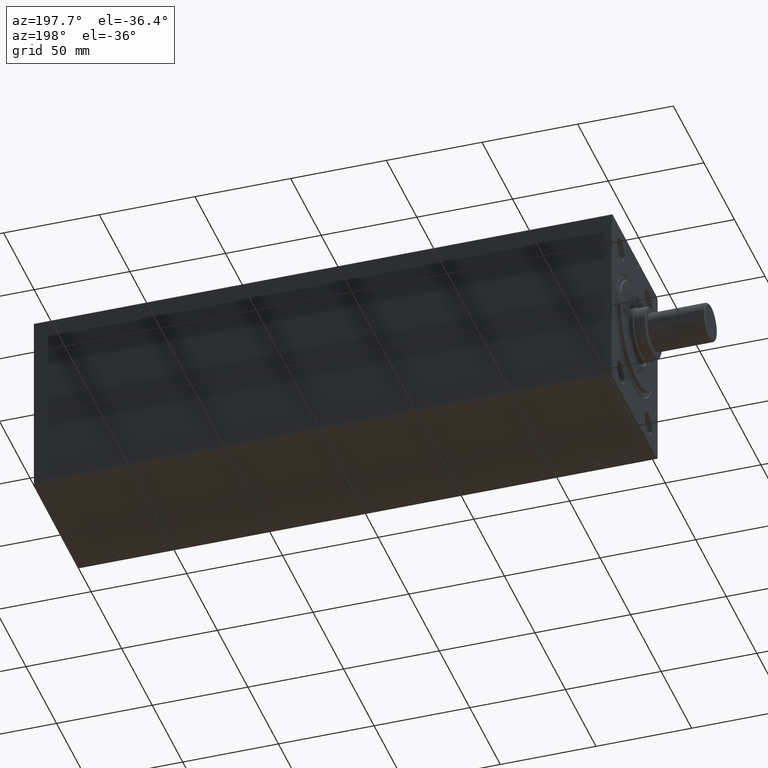
[diagram: clean part render]
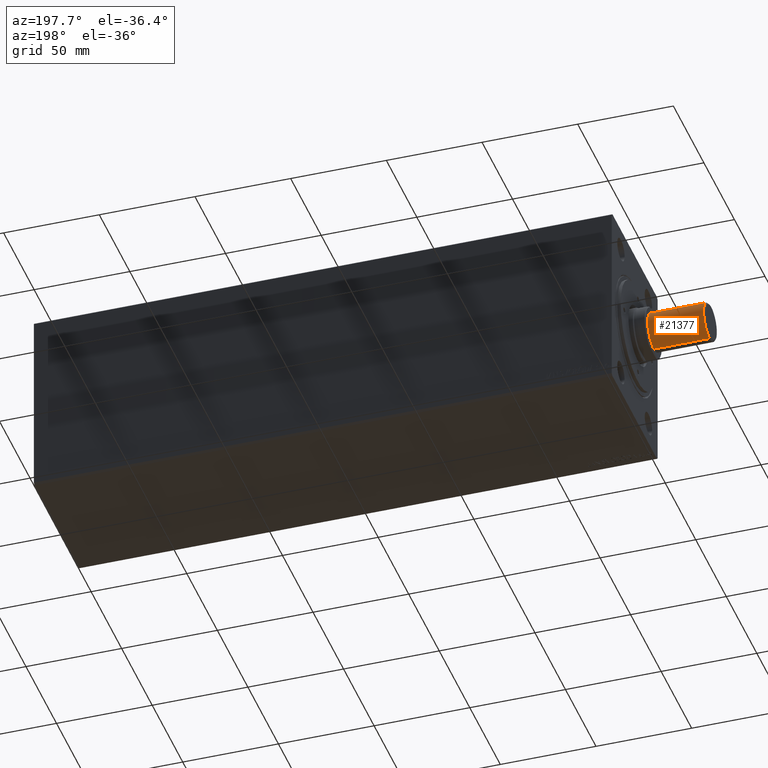
[diagram: same view with one face highlighted and labeled with its STEP entity id]
A machine part, auxiliary view. The second image highlights one B-rep face of the part: STEP entity #21377.
In plain terms, the highlighted cylindrical surface (edge-blend (fillet) strip) has radius 10 mm, axis along (1, -0, -0).
Its self-contained STEP definition (entity closure, byte-faithful):
#426 = CARTESIAN_POINT ( 'NONE',  ( 0.000000000000000000, 0.000000000000000000, -30.00000000000000000 ) ) ;
#433 = CARTESIAN_POINT ( 'NONE',  ( -10.00000000000000000, 1.224646799147353256E-15, -30.00000000000000000 ) ) ;
#4456 = DIRECTION ( 'NONE',  ( 0.000000000000000000, 0.000000000000000000, 1.000000000000000000 ) ) ;
#5156 = VECTOR ( 'NONE', #4456, 1000.000000000000000 ) ;
#5344 = VECTOR ( 'NONE', #8510, 1000.000000000000000 ) ;
#7533 = EDGE_LOOP ( 'NONE', ( #18610, #30645, #13356, #18503 ) ) ;
#7570 = AXIS2_PLACEMENT_3D ( 'NONE', #19269, #29151, #19053 ) ;
#8510 = DIRECTION ( 'NONE',  ( 0.000000000000000000, 0.000000000000000000, 1.000000000000000000 ) ) ;
#8788 = CARTESIAN_POINT ( 'NONE',  ( -10.00000000000000000, 1.224646799147353256E-15, 0.000000000000000000 ) ) ;
#9583 = AXIS2_PLACEMENT_3D ( 'NONE', #426, #22073, #11544 ) ;
#9836 = DIRECTION ( 'NONE',  ( 1.000000000000000000, 0.000000000000000000, 0.000000000000000000 ) ) ;
#10154 = CARTESIAN_POINT ( 'NONE',  ( 10.00000000000000000, 0.000000000000000000, 0.000000000000000000 ) ) ;
#10172 = AXIS2_PLACEMENT_3D ( 'NONE', #44344, #16777, #9836 ) ;
#11544 = DIRECTION ( 'NONE',  ( 1.000000000000000000, 0.000000000000000000, 0.000000000000000000 ) ) ;
#13356 = ORIENTED_EDGE ( 'NONE', *, *, #33012, .F. ) ;
#14463 = CIRCLE ( 'NONE', #10172, 10.00000000000000000 ) ;
#16665 = EDGE_CURVE ( 'NONE', #42389, #40208, #14463, .T. ) ;
#16705 = EDGE_CURVE ( 'NONE', #40208, #43817, #42095, .T. ) ;
#16777 = DIRECTION ( 'NONE',  ( -0.000000000000000000, -0.000000000000000000, 1.000000000000000000 ) ) ;
#18503 = ORIENTED_EDGE ( 'NONE', *, *, #24272, .F. ) ;
#18610 = ORIENTED_EDGE ( 'NONE', *, *, #16665, .T. ) ;
#19053 = DIRECTION ( 'NONE',  ( 1.000000000000000000, 0.000000000000000000, 0.000000000000000000 ) ) ;
#19269 = CARTESIAN_POINT ( 'NONE',  ( 0.000000000000000000, 0.000000000000000000, 0.000000000000000000 ) ) ;
#21377 = ADVANCED_FACE ( 'NONE', ( #27755 ), #27527, .T. ) ;
#22073 = DIRECTION ( 'NONE',  ( 0.000000000000000000, 0.000000000000000000, 1.000000000000000000 ) ) ;
#24272 = EDGE_CURVE ( 'NONE', #42389, #30099, #29362, .T. ) ;
#24436 = CARTESIAN_POINT ( 'NONE',  ( -10.00000000000000000, 1.224646799147353256E-15, -29.19999999999999574 ) ) ;
#27527 = CYLINDRICAL_SURFACE ( 'NONE', #9583, 10.00000000000000000 ) ;
#27755 = FACE_OUTER_BOUND ( 'NONE', #7533, .T. ) ;
#29151 = DIRECTION ( 'NONE',  ( 0.000000000000000000, 0.000000000000000000, 1.000000000000000000 ) ) ;
#29362 = LINE ( 'NONE', #39225, #5344 ) ;
#30099 = VERTEX_POINT ( 'NONE', #10154 ) ;
#30645 = ORIENTED_EDGE ( 'NONE', *, *, #16705, .T. ) ;
#31929 = CIRCLE ( 'NONE', #7570, 10.00000000000000000 ) ;
#33012 = EDGE_CURVE ( 'NONE', #30099, #43817, #31929, .T. ) ;
#35821 = CARTESIAN_POINT ( 'NONE',  ( 10.00000000000000000, 0.000000000000000000, -29.19999999999999574 ) ) ;
#39225 = CARTESIAN_POINT ( 'NONE',  ( 10.00000000000000000, 0.000000000000000000, -30.00000000000000000 ) ) ;
#40208 = VERTEX_POINT ( 'NONE', #24436 ) ;
#42095 = LINE ( 'NONE', #433, #5156 ) ;
#42389 = VERTEX_POINT ( 'NONE', #35821 ) ;
#43817 = VERTEX_POINT ( 'NONE', #8788 ) ;
#44344 = CARTESIAN_POINT ( 'NONE',  ( 0.000000000000000000, 0.000000000000000000, -29.19999999999999574 ) ) ;